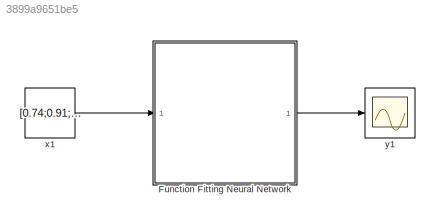
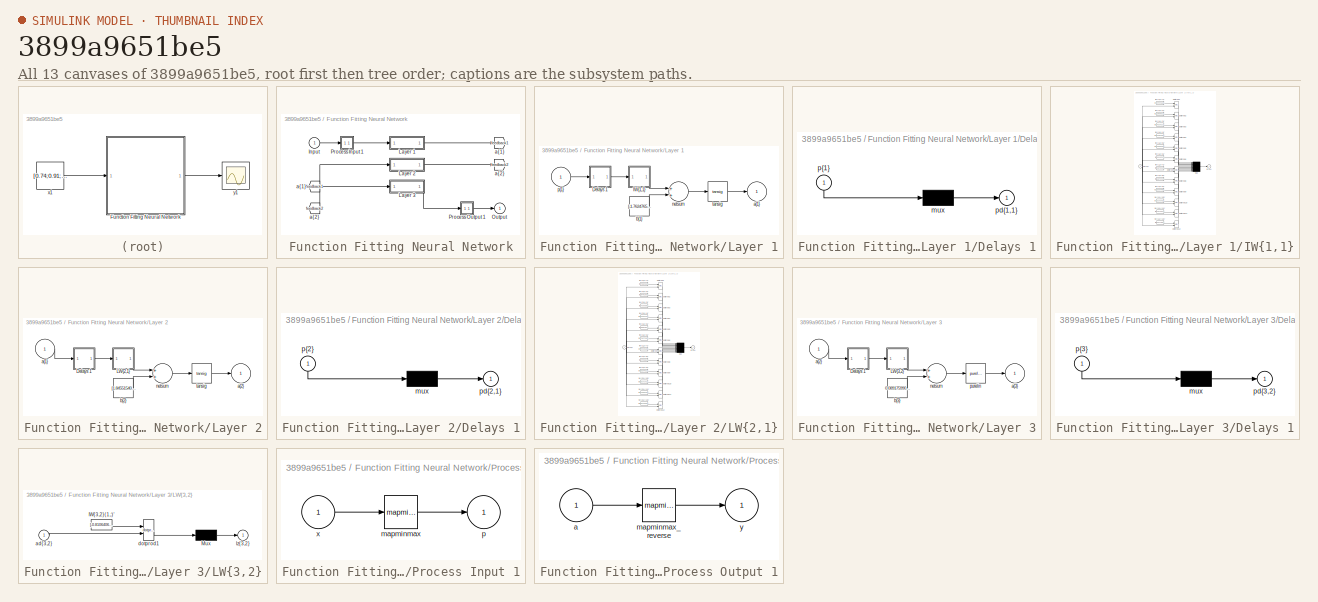
[diagram: thumbnail index - all 13 canvases of the model, root first then tree order]
MODEL slx_3899a9651be5
KIND model
CONFIG AbsTol = auto
CONFIG EnableMultiTasking = off
CONFIG FixedStep = auto
CONFIG MaxStep = auto
CONFIG MinStep = auto
CONFIG RelTol = 1e-3
CONFIG SampleTimeConstraint = Unconstrained
CONFIG Solver = VariableStepAuto
CONFIG SolverName = VariableStepAuto
CONFIG StartTime = 0.0
CONFIG StopTime = 10.0
BLOCK [SubSystem] Function Fitting Neural Network
  Ports = [1, 1]
  RequestExecContextInheritance = off
  Variant = off
BLOCK [From] Function Fitting Neural Network/ a{1} 
  GotoTag = feedback1
BLOCK [From] Function Fitting Neural Network/ a{2} 
  GotoTag = feedback2
BLOCK [Inport] Function Fitting Neural Network/Input
  IconDisplay = Port number
  PortDimensions = 12
BLOCK [SubSystem] Function Fitting Neural Network/Layer 1
  Ports = [1, 1]
  RequestExecContextInheritance = off
  Variant = off
BLOCK [SubSystem] Function Fitting Neural Network/Layer 1/Delays 1
  Ports = [1, 1]
  RequestExecContextInheritance = off
  Variant = off
BLOCK [Mux] Function Fitting Neural Network/Layer 1/Delays 1/mux
  Inputs = 1
  Ports = [1, 1]
BLOCK [Outport] Function Fitting Neural Network/Layer 1/Delays 1/pd{1,1}
  IconDisplay = Port number
BLOCK [Inport] Function Fitting Neural Network/Layer 1/Delays 1/p{1}
  IconDisplay = Port number
  PortDimensions = 12
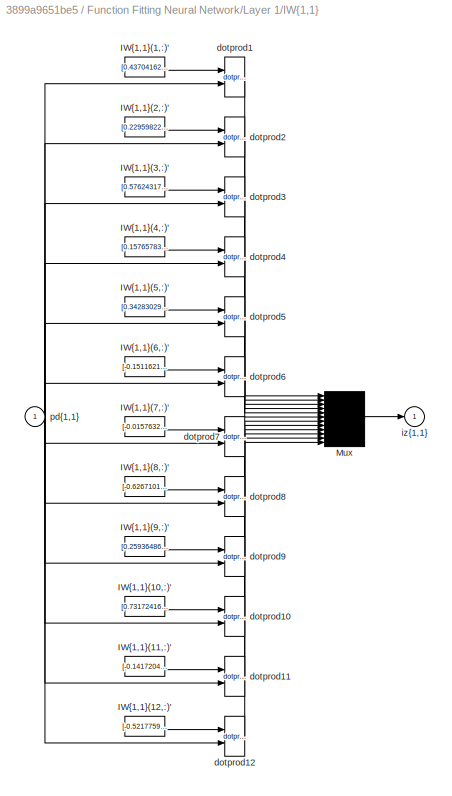
BLOCK [SubSystem] Function Fitting Neural Network/Layer 1/IW{1,1}
  Ports = [1, 1]
  RequestExecContextInheritance = off
  Variant = off
BLOCK [Constant] Function Fitting Neural Network/Layer 1/IW{1,1}/IW{1,1}(1,:)'
  Value = [0.43704162364917265;0.64268125468312598;-0.74407939485202568;-0.3734645715665717;-0.12626066338220779;-0.46102057530924151;0.33214810769991265;-0.66232507531383999;0.66531976328136044;-0.12225439327874496;0.64215575058601371;0.073497253031550164]
BLOCK [Constant] Function Fitting Neural Network/Layer 1/IW{1,1}/IW{1,1}(10,:)'
  Value = [0.73172416477229518;-0.55908697838488608;0.36031908531616563;0.1079634561764575;-0.37544739516279813;-0.35406300722800915;-1.3115252726166038;0.028269575601080982;0.35320530625842311;-0.78640110368279847;-0.92589312522952338;0.46373655461860663]
BLOCK [Constant] Function Fitting Neural Network/Layer 1/IW{1,1}/IW{1,1}(11,:)'
  Value = [-0.14172042795184125;0.48419613030205261;0.67339126379857572;-0.5267026226090179;0.92456885755021978;0.14686022613108224;-0.75265261554988139;0.59666652129532927;-0.75425762066235413;-0.62027275559831441;0.36373750965956259;0.17373381678363042]
BLOCK [Constant] Function Fitting Neural Network/Layer 1/IW{1,1}/IW{1,1}(12,:)'
  Value = [-0.5217759488072734;-0.48405983814134729;-0.18520727310090618;-0.63290721790703641;0.68564554213040452;-0.45184333731868864;-0.77640408155051999;0.30284858611110799;0.52446841188808857;-0.2084961613668796;0.40115886078777718;0.22575297606147535]
BLOCK [Constant] Function Fitting Neural Network/Layer 1/IW{1,1}/IW{1,1}(2,:)'
  Value = [0.22959822909370561;-0.33342449436632526;0.45852451590497523;0.31566822699939268;-0.58014134623582658;0.22806929935791051;0.56878341000542942;-0.5404831224275235;-0.61808387327567704;-0.95324549446138307;-0.33847631052852961;0.48615203461508438]
BLOCK [Constant] Function Fitting Neural Network/Layer 1/IW{1,1}/IW{1,1}(3,:)'
  Value = [0.57624317080561072;0.36595937279211366;0.039649707724281634;-0.86736527094081428;-0.79362060868904283;0.47852106915302667;-0.80720555224527946;-0.0040908853910025782;-0.10760235398373853;-0.22599931958945088;-0.75519893585475983;0.31637685757109729]
BLOCK [Constant] Function Fitting Neural Network/Layer 1/IW{1,1}/IW{1,1}(4,:)'
  Value = [0.1576578330251901;0.77087476149448841;0.30355869783513928;0.39128023747688556;0.96386455561552387;0.61639625722258595;0.55255576127873218;0.079347682525971755;-0.72520302612003251;0.25233053209656936;-0.071870563209848012;-0.86871619634233732]
BLOCK [Constant] Function Fitting Neural Network/Layer 1/IW{1,1}/IW{1,1}(5,:)'
  Value = [0.34283029176939905;0.12352373707109091;0.087430127960762799;0.94246062121024399;0.28911064862805019;-0.64643358956845753;-0.57024393427533404;0.19028237926670255;0.01687082321468324;-0.74552047769749652;-1.1628701820997904;-0.54941192734007682]
BLOCK [Constant] Function Fitting Neural Network/Layer 1/IW{1,1}/IW{1,1}(6,:)'
  Value = [-0.15116213957899496;-0.032371377982644015;-0.45341244605058073;-0.80233604702929129;0.67644649882711272;-0.32955983568962738;-0.45415994446073715;2.2660708503599616;1.1022757144642079;-0.18711245112138383;1.7931908262360281;-0.11728337564279079]
BLOCK [Constant] Function Fitting Neural Network/Layer 1/IW{1,1}/IW{1,1}(7,:)'
  Value = [-0.015763293509663361;0.21418879108348557;0.084789347665062215;-0.9473501808947381;-0.52956413775388;0.62644870653298712;-0.74546177072795106;0.7528532590202619;0.38215642418860213;-0.014217787850693322;-0.52804640380680146;-0.17017563461053492]
BLOCK [Constant] Function Fitting Neural Network/Layer 1/IW{1,1}/IW{1,1}(8,:)'
  Value = [-0.62671017079077518;-0.45246493911875357;-0.5497993464891211;-0.52117615126827155;0.11962404645454343;0.044242025337097604;0.30973714125566393;0.64627574164023438;-0.60722558952788463;0.28662459457240202;-0.13444999960085108;-0.81674384744708606]
BLOCK [Constant] Function Fitting Neural Network/Layer 1/IW{1,1}/IW{1,1}(9,:)'
  Value = [0.25936486561922034;0.20665186859930315;0.12820438753315816;-0.55779816093197465;0.18984735796494484;-0.91491670208443543;1.3719632130581405;0.17232005685943325;-0.75605686115374549;0.30157278173616214;1.2478783084987748;0.26367734963050249]
BLOCK [Mux] Function Fitting Neural Network/Layer 1/IW{1,1}/Mux
  Inputs = 12
  Ports = [12, 1]
BLOCK [Reference] Function Fitting Neural Network/Layer 1/IW{1,1}/dotprod1  REF=neural/Weight Functions/dotprod
  Ports = [2, 1]
  SourceBlock = neural/Weight Functions/dotprod
  SourceType = DOTPROD
BLOCK [Reference] Function Fitting Neural Network/Layer 1/IW{1,1}/dotprod10  REF=neural/Weight Functions/dotprod
  Ports = [2, 1]
  SourceBlock = neural/Weight Functions/dotprod
  SourceType = DOTPROD
BLOCK [Reference] Function Fitting Neural Network/Layer 1/IW{1,1}/dotprod11  REF=neural/Weight Functions/dotprod
  Ports = [2, 1]
  SourceBlock = neural/Weight Functions/dotprod
  SourceType = DOTPROD
BLOCK [Reference] Function Fitting Neural Network/Layer 1/IW{1,1}/dotprod12  REF=neural/Weight Functions/dotprod
  Ports = [2, 1]
  SourceBlock = neural/Weight Functions/dotprod
  SourceType = DOTPROD
BLOCK [Reference] Function Fitting Neural Network/Layer 1/IW{1,1}/dotprod2  REF=neural/Weight Functions/dotprod
  Ports = [2, 1]
  SourceBlock = neural/Weight Functions/dotprod
  SourceType = DOTPROD
BLOCK [Reference] Function Fitting Neural Network/Layer 1/IW{1,1}/dotprod3  REF=neural/Weight Functions/dotprod
  Ports = [2, 1]
  SourceBlock = neural/Weight Functions/dotprod
  SourceType = DOTPROD
BLOCK [Reference] Function Fitting Neural Network/Layer 1/IW{1,1}/dotprod4  REF=neural/Weight Functions/dotprod
  Ports = [2, 1]
  SourceBlock = neural/Weight Functions/dotprod
  SourceType = DOTPROD
BLOCK [Reference] Function Fitting Neural Network/Layer 1/IW{1,1}/dotprod5  REF=neural/Weight Functions/dotprod
  Ports = [2, 1]
  SourceBlock = neural/Weight Functions/dotprod
  SourceType = DOTPROD
BLOCK [Reference] Function Fitting Neural Network/Layer 1/IW{1,1}/dotprod6  REF=neural/Weight Functions/dotprod
  Ports = [2, 1]
  SourceBlock = neural/Weight Functions/dotprod
  SourceType = DOTPROD
BLOCK [Reference] Function Fitting Neural Network/Layer 1/IW{1,1}/dotprod7  REF=neural/Weight Functions/dotprod
  Ports = [2, 1]
  SourceBlock = neural/Weight Functions/dotprod
  SourceType = DOTPROD
BLOCK [Reference] Function Fitting Neural Network/Layer 1/IW{1,1}/dotprod8  REF=neural/Weight Functions/dotprod
  Ports = [2, 1]
  SourceBlock = neural/Weight Functions/dotprod
  SourceType = DOTPROD
BLOCK [Reference] Function Fitting Neural Network/Layer 1/IW{1,1}/dotprod9  REF=neural/Weight Functions/dotprod
  Ports = [2, 1]
  SourceBlock = neural/Weight Functions/dotprod
  SourceType = DOTPROD
BLOCK [Outport] Function Fitting Neural Network/Layer 1/IW{1,1}/iz{1,1}
  IconDisplay = Port number
BLOCK [Inport] Function Fitting Neural Network/Layer 1/IW{1,1}/pd{1,1}
  IconDisplay = Port number
  PortDimensions = 12
BLOCK [Outport] Function Fitting Neural Network/Layer 1/a{1}
  IconDisplay = Port number
  InitialOutput = [0;0;0;0;0;0;0;0;0;0;0;0]
BLOCK [Constant] Function Fitting Neural Network/Layer 1/b{1}
  Value = [-1.7624765523461459;-1.4017486724466128;-1.4268627485283323;1.0814369417314096;0.53679886543957545;-0.34753195461461317;-0.31759357765782331;-0.15139993602678378;-0.66998139740716411;0.92016977214989837;-1.2369349738001543;-1.8114444280105317]
BLOCK [Sum] Function Fitting Neural Network/Layer 1/netsum
  Inputs = 2
  Ports = [2, 1]
BLOCK [Inport] Function Fitting Neural Network/Layer 1/p{1}
  IconDisplay = Port number
  PortDimensions = 12
BLOCK [Reference] Function Fitting Neural Network/Layer 1/tansig  REF=neural/Transfer Functions/tansig
  Ports = [1, 1]
  SourceBlock = neural/Transfer Functions/tansig
  SourceType = TANSIG
BLOCK [SubSystem] Function Fitting Neural Network/Layer 2
  Ports = [1, 1]
  RequestExecContextInheritance = off
  Variant = off
BLOCK [SubSystem] Function Fitting Neural Network/Layer 2/Delays 1
  Ports = [1, 1]
  RequestExecContextInheritance = off
  Variant = off
BLOCK [Mux] Function Fitting Neural Network/Layer 2/Delays 1/mux
  Inputs = 1
  Ports = [1, 1]
BLOCK [Outport] Function Fitting Neural Network/Layer 2/Delays 1/pd{2,1}
  IconDisplay = Port number
BLOCK [Inport] Function Fitting Neural Network/Layer 2/Delays 1/p{2}
  IconDisplay = Port number
  PortDimensions = 12
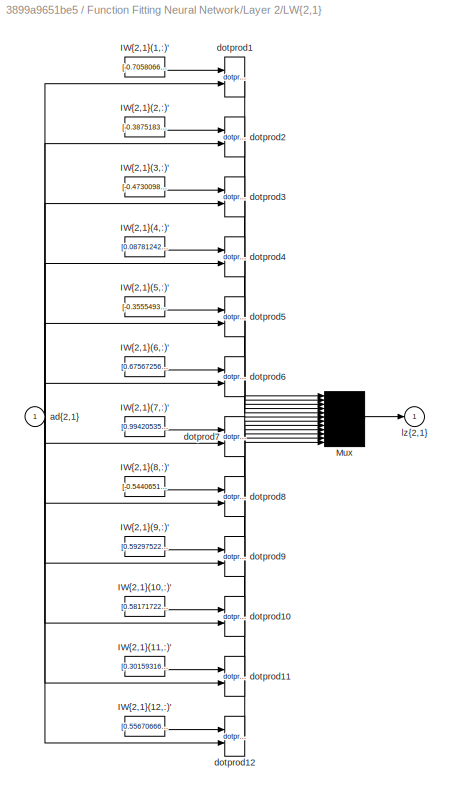
BLOCK [SubSystem] Function Fitting Neural Network/Layer 2/LW{2,1}
  Ports = [1, 1]
  RequestExecContextInheritance = off
  Variant = off
BLOCK [Constant] Function Fitting Neural Network/Layer 2/LW{2,1}/IW{2,1}(1,:)'
  Value = [-0.70580664939987614;-0.59922348813434956;-0.73046098918962976;-0.79798612223987286;0.72819550873942451;-0.20558560812675927;-0.34530167607529949;-0.39341193455103446;-0.39554952118936765;-0.2886402054489417;0.09929143305595696;0.0061291713483986087]
BLOCK [Constant] Function Fitting Neural Network/Layer 2/LW{2,1}/IW{2,1}(10,:)'
  Value = [0.58171722760559375;0.79306889532764235;0.54123869182575812;-0.40172787012084188;0.61470431983259999;-0.07605612315944503;0.24412775954313906;0.20205203974727218;-0.62573256089481011;-0.68292683595051429;0.01739115960622506;0.12085968373147046]
BLOCK [Constant] Function Fitting Neural Network/Layer 2/LW{2,1}/IW{2,1}(11,:)'
  Value = [0.30159316262660385;0.94578290084413819;-0.67358527566590609;0.34914593420697998;0.34720483546225855;0.23391976875251116;-0.75903575740902374;-0.8506659121896879;1.0569115461559653;-0.24506153917743503;-0.070593751900800847;0.3724039575517003]
BLOCK [Constant] Function Fitting Neural Network/Layer 2/LW{2,1}/IW{2,1}(12,:)'
  Value = [0.55670666395211488;-0.13808336163564464;0.1148993341206648;-0.43413512080571592;0.47709799423075544;-1.5337289181724385;-0.24337678727588968;-0.04644269521146735;0.62938059723870021;0.16175791474798168;-0.53455090868718502;0.013496562980993658]
BLOCK [Constant] Function Fitting Neural Network/Layer 2/LW{2,1}/IW{2,1}(2,:)'
  Value = [-0.38751836803006035;0.37599209565875197;-0.38818007731746601;-0.64668986108379789;-0.70660961212988738;0.21430279062356958;0.75208021451588869;0.15346631372131789;-0.7372953845079242;-0.26859258555105719;-0.47262612740750504;0.49142255035269389]
BLOCK [Constant] Function Fitting Neural Network/Layer 2/LW{2,1}/IW{2,1}(3,:)'
  Value = [-0.47300985613508495;-0.41676400068333891;-0.53028894803765392;-0.16558201351277438;-0.87005867460034003;-0.61067040813953766;0.2749628955862457;0.52625208164059567;-0.66945805088073063;0.51092503907860853;-0.54302331542243854;-0.30987460385770521]
BLOCK [Constant] Function Fitting Neural Network/Layer 2/LW{2,1}/IW{2,1}(4,:)'
  Value = [0.087812420545653497;0.21054179316835245;0.41596262819800517;0.041473927522200693;0.36256419350803915;1.0708950786391818;-0.60045315668519417;0.78144584346132939;-0.83868179240117779;0.89927033267507728;-0.054247702675083831;-0.048725543315571739]
BLOCK [Constant] Function Fitting Neural Network/Layer 2/LW{2,1}/IW{2,1}(5,:)'
  Value = [-0.35554934136670147;0.15370521951693195;0.47693773303308257;-0.59570842270850821;0.48936294353947146;0.50491111205326178;-0.59168908495011241;-0.15019154130798662;0.61795848456100744;-0.46928652111028946;0.54313333901242966;0.61728093532653416]
BLOCK [Constant] Function Fitting Neural Network/Layer 2/LW{2,1}/IW{2,1}(6,:)'
  Value = [0.67567256767512285;-0.34742025274260302;0.34765532213782441;-0.64935151754045717;0.61184092404050572;-0.01255851922592021;0.5854603398106456;-0.70393259781871709;-0.51879764106758852;-0.10687455595706893;-0.61283847905014799;-0.06933277910297217]
BLOCK [Constant] Function Fitting Neural Network/Layer 2/LW{2,1}/IW{2,1}(7,:)'
  Value = [0.99420535092525564;-0.2987842761272505;-0.37605840455832834;-0.78808551545026639;-0.71710856580445259;0.45127088598771353;-0.033869659734781198;-0.22289145204084895;0.70735154004136558;-1.0588768224513545;-1.0588711376939308;-0.24662192879078432]
BLOCK [Constant] Function Fitting Neural Network/Layer 2/LW{2,1}/IW{2,1}(8,:)'
  Value = [-0.54406517101715357;0.47620796832699464;0.55521023107529555;0.72295768246122316;0.0041442196122145085;-0.86605346213631507;-0.66988803210212766;0.20192271262279368;0.19657038951732453;-0.78732677444727661;-0.050951180024884538;0.28197959951655399]
BLOCK [Constant] Function Fitting Neural Network/Layer 2/LW{2,1}/IW{2,1}(9,:)'
  Value = [0.59297522414953308;0.51849411799365508;0.54425802128418477;-0.89250362222650859;0.066616947749631894;-0.065434336680788074;0.68535980273217079;-0.51874714869722893;0.36229480222098248;-0.73929277811212735;-0.14877974449021422;0.54489606610511598]
BLOCK [Mux] Function Fitting Neural Network/Layer 2/LW{2,1}/Mux
  Inputs = 12
  Ports = [12, 1]
BLOCK [Inport] Function Fitting Neural Network/Layer 2/LW{2,1}/ad{2,1}
  IconDisplay = Port number
  PortDimensions = 12
BLOCK [Reference] Function Fitting Neural Network/Layer 2/LW{2,1}/dotprod1  REF=neural/Weight Functions/dotprod
  Ports = [2, 1]
  SourceBlock = neural/Weight Functions/dotprod
  SourceType = DOTPROD
BLOCK [Reference] Function Fitting Neural Network/Layer 2/LW{2,1}/dotprod10  REF=neural/Weight Functions/dotprod
  Ports = [2, 1]
  SourceBlock = neural/Weight Functions/dotprod
  SourceType = DOTPROD
BLOCK [Reference] Function Fitting Neural Network/Layer 2/LW{2,1}/dotprod11  REF=neural/Weight Functions/dotprod
  Ports = [2, 1]
  SourceBlock = neural/Weight Functions/dotprod
  SourceType = DOTPROD
BLOCK [Reference] Function Fitting Neural Network/Layer 2/LW{2,1}/dotprod12  REF=neural/Weight Functions/dotprod
  Ports = [2, 1]
  SourceBlock = neural/Weight Functions/dotprod
  SourceType = DOTPROD
BLOCK [Reference] Function Fitting Neural Network/Layer 2/LW{2,1}/dotprod2  REF=neural/Weight Functions/dotprod
  Ports = [2, 1]
  SourceBlock = neural/Weight Functions/dotprod
  SourceType = DOTPROD
BLOCK [Reference] Function Fitting Neural Network/Layer 2/LW{2,1}/dotprod3  REF=neural/Weight Functions/dotprod
  Ports = [2, 1]
  SourceBlock = neural/Weight Functions/dotprod
  SourceType = DOTPROD
BLOCK [Reference] Function Fitting Neural Network/Layer 2/LW{2,1}/dotprod4  REF=neural/Weight Functions/dotprod
  Ports = [2, 1]
  SourceBlock = neural/Weight Functions/dotprod
  SourceType = DOTPROD
BLOCK [Reference] Function Fitting Neural Network/Layer 2/LW{2,1}/dotprod5  REF=neural/Weight Functions/dotprod
  Ports = [2, 1]
  SourceBlock = neural/Weight Functions/dotprod
  SourceType = DOTPROD
BLOCK [Reference] Function Fitting Neural Network/Layer 2/LW{2,1}/dotprod6  REF=neural/Weight Functions/dotprod
  Ports = [2, 1]
  SourceBlock = neural/Weight Functions/dotprod
  SourceType = DOTPROD
BLOCK [Reference] Function Fitting Neural Network/Layer 2/LW{2,1}/dotprod7  REF=neural/Weight Functions/dotprod
  Ports = [2, 1]
  SourceBlock = neural/Weight Functions/dotprod
  SourceType = DOTPROD
BLOCK [Reference] Function Fitting Neural Network/Layer 2/LW{2,1}/dotprod8  REF=neural/Weight Functions/dotprod
  Ports = [2, 1]
  SourceBlock = neural/Weight Functions/dotprod
  SourceType = DOTPROD
BLOCK [Reference] Function Fitting Neural Network/Layer 2/LW{2,1}/dotprod9  REF=neural/Weight Functions/dotprod
  Ports = [2, 1]
  SourceBlock = neural/Weight Functions/dotprod
  SourceType = DOTPROD
BLOCK [Outport] Function Fitting Neural Network/Layer 2/LW{2,1}/lz{2,1}
  IconDisplay = Port number
BLOCK [Inport] Function Fitting Neural Network/Layer 2/a{1} 
  IconDisplay = Port number
  PortDimensions = 12
BLOCK [Outport] Function Fitting Neural Network/Layer 2/a{2}
  IconDisplay = Port number
  InitialOutput = [0;0;0;0;0;0;0;0;0;0;0;0]
BLOCK [Constant] Function Fitting Neural Network/Layer 2/b{2}
  Value = [1.8455154064150041;1.4710305045036867;0.93709520672709623;-0.73913241005552244;0.51169156646500991;-0.17272809345153597;-0.065775516746546858;-0.4142578993301384;0.59660483925796781;1.0978626739172705;1.4059195802052178;1.8190633821377615]
BLOCK [Sum] Function Fitting Neural Network/Layer 2/netsum
  Inputs = 2
  Ports = [2, 1]
BLOCK [Reference] Function Fitting Neural Network/Layer 2/tansig  REF=neural/Transfer Functions/tansig
  Ports = [1, 1]
  SourceBlock = neural/Transfer Functions/tansig
  SourceType = TANSIG
BLOCK [SubSystem] Function Fitting Neural Network/Layer 3
  Ports = [1, 1]
  RequestExecContextInheritance = off
  Variant = off
BLOCK [SubSystem] Function Fitting Neural Network/Layer 3/Delays 1
  Ports = [1, 1]
  RequestExecContextInheritance = off
  Variant = off
BLOCK [Mux] Function Fitting Neural Network/Layer 3/Delays 1/mux
  Inputs = 1
  Ports = [1, 1]
BLOCK [Outport] Function Fitting Neural Network/Layer 3/Delays 1/pd{3,2}
  IconDisplay = Port number
BLOCK [Inport] Function Fitting Neural Network/Layer 3/Delays 1/p{3}
  IconDisplay = Port number
  PortDimensions = 12
BLOCK [SubSystem] Function Fitting Neural Network/Layer 3/LW{3,2}
  Ports = [1, 1]
  RequestExecContextInheritance = off
  Variant = off
BLOCK [Constant] Function Fitting Neural Network/Layer 3/LW{3,2}/IW{3,2}(1,:)'
  Value = [-0.81064064556826421;-0.67774826278314637;1.1975880653313418;0.58014563757665039;-0.080108257987620751;-0.40167529020554832;0.67309675335534624;0.16437190224500081;0.4081449494265515;-0.063754727388315668;0.84071436976144587;-0.73673977825543369]
BLOCK [Mux] Function Fitting Neural Network/Layer 3/LW{3,2}/Mux
  Inputs = 1
  Ports = [1, 1]
BLOCK [Inport] Function Fitting Neural Network/Layer 3/LW{3,2}/ad{3,2}
  IconDisplay = Port number
  PortDimensions = 12
BLOCK [Reference] Function Fitting Neural Network/Layer 3/LW{3,2}/dotprod1  REF=neural/Weight Functions/dotprod
  Ports = [2, 1]
  SourceBlock = neural/Weight Functions/dotprod
  SourceType = DOTPROD
BLOCK [Outport] Function Fitting Neural Network/Layer 3/LW{3,2}/lz{3,2}
  IconDisplay = Port number
BLOCK [Inport] Function Fitting Neural Network/Layer 3/a{2} 
  IconDisplay = Port number
  PortDimensions = 12
BLOCK [Outport] Function Fitting Neural Network/Layer 3/a{3}
  IconDisplay = Port number
  InitialOutput = 0
BLOCK [Constant] Function Fitting Neural Network/Layer 3/b{3}
  Value = 0.089175990689318863
BLOCK [Sum] Function Fitting Neural Network/Layer 3/netsum
  Inputs = 2
  Ports = [2, 1]
BLOCK [Reference] Function Fitting Neural Network/Layer 3/purelin  REF=neural/Transfer Functions/purelin
  Ports = [1, 1]
  SourceBlock = neural/Transfer Functions/purelin
  SourceType = PURELIN
BLOCK [Outport] Function Fitting Neural Network/Output
  IconDisplay = Port number
  InitialOutput = 0
BLOCK [SubSystem] Function Fitting Neural Network/Process Input 1
  Ports = [1, 1]
  RequestExecContextInheritance = off
  Variant = off
BLOCK [Reference] Function Fitting Neural Network/Process Input 1/mapminmax  REF=neural/Processing Functions/mapminmax
  Ports = [1, 1]
  SourceBlock = neural/Processing Functions/mapminmax
  SourceType = MAPMINMAX Preprocess
BLOCK [Outport] Function Fitting Neural Network/Process Input 1/p
  IconDisplay = Port number
  PortDimensions = 12
BLOCK [Inport] Function Fitting Neural Network/Process Input 1/x
  IconDisplay = Port number
  PortDimensions = 12
BLOCK [SubSystem] Function Fitting Neural Network/Process Output 1
  Ports = [1, 1]
  RequestExecContextInheritance = off
  Variant = off
BLOCK [Inport] Function Fitting Neural Network/Process Output 1/a
  IconDisplay = Port number
  PortDimensions = 1
BLOCK [Reference] Function Fitting Neural Network/Process Output 1/mapminmax_reverse  REF=neural/Processing Functions/mapminmax_reverse
  Ports = [1, 1]
  SourceBlock = neural/Processing Functions/mapminmax_reverse
  SourceType = MAPMINMAX Reverse Process
BLOCK [Outport] Function Fitting Neural Network/Process Output 1/y
  IconDisplay = Port number
  PortDimensions = 1
BLOCK [Goto] Function Fitting Neural Network/a{1}
  GotoTag = feedback1
BLOCK [Goto] Function Fitting Neural Network/a{2}
  GotoTag = feedback2
BLOCK [Constant] x1
  SampleTime = 1
  Value = [0.74;0.91;0.15;0.026;0.78;0.83;0.12;0.29;0.85;0.46;0.18;0.58]
BLOCK [Scope] y1
  NumInputPorts = 1
  Ports = [1]
LINE Function Fitting Neural Network/ a{1} :1 -> Function Fitting Neural Network/Layer 2:1
LINE Function Fitting Neural Network/ a{2} :1 -> Function Fitting Neural Network/Layer 3:1
LINE Function Fitting Neural Network/Input:1 -> Function Fitting Neural Network/Process Input 1:1
LINE Function Fitting Neural Network/Layer 1/Delays 1/mux:1 -> Function Fitting Neural Network/Layer 1/Delays 1/pd{1,1}:1
LINE Function Fitting Neural Network/Layer 1/Delays 1/p{1}:1 -> Function Fitting Neural Network/Layer 1/Delays 1/mux:1
LINE Function Fitting Neural Network/Layer 1/Delays 1:1 -> Function Fitting Neural Network/Layer 1/IW{1,1}:1
LINE Function Fitting Neural Network/Layer 1/IW{1,1}/IW{1,1}(1,:)':1 -> Function Fitting Neural Network/Layer 1/IW{1,1}/dotprod1:1
LINE Function Fitting Neural Network/Layer 1/IW{1,1}/IW{1,1}(10,:)':1 -> Function Fitting Neural Network/Layer 1/IW{1,1}/dotprod10:1
LINE Function Fitting Neural Network/Layer 1/IW{1,1}/IW{1,1}(11,:)':1 -> Function Fitting Neural Network/Layer 1/IW{1,1}/dotprod11:1
LINE Function Fitting Neural Network/Layer 1/IW{1,1}/IW{1,1}(12,:)':1 -> Function Fitting Neural Network/Layer 1/IW{1,1}/dotprod12:1
LINE Function Fitting Neural Network/Layer 1/IW{1,1}/IW{1,1}(2,:)':1 -> Function Fitting Neural Network/Layer 1/IW{1,1}/dotprod2:1
LINE Function Fitting Neural Network/Layer 1/IW{1,1}/IW{1,1}(3,:)':1 -> Function Fitting Neural Network/Layer 1/IW{1,1}/dotprod3:1
LINE Function Fitting Neural Network/Layer 1/IW{1,1}/IW{1,1}(4,:)':1 -> Function Fitting Neural Network/Layer 1/IW{1,1}/dotprod4:1
LINE Function Fitting Neural Network/Layer 1/IW{1,1}/IW{1,1}(5,:)':1 -> Function Fitting Neural Network/Layer 1/IW{1,1}/dotprod5:1
LINE Function Fitting Neural Network/Layer 1/IW{1,1}/IW{1,1}(6,:)':1 -> Function Fitting Neural Network/Layer 1/IW{1,1}/dotprod6:1
LINE Function Fitting Neural Network/Layer 1/IW{1,1}/IW{1,1}(7,:)':1 -> Function Fitting Neural Network/Layer 1/IW{1,1}/dotprod7:1
LINE Function Fitting Neural Network/Layer 1/IW{1,1}/IW{1,1}(8,:)':1 -> Function Fitting Neural Network/Layer 1/IW{1,1}/dotprod8:1
LINE Function Fitting Neural Network/Layer 1/IW{1,1}/IW{1,1}(9,:)':1 -> Function Fitting Neural Network/Layer 1/IW{1,1}/dotprod9:1
LINE Function Fitting Neural Network/Layer 1/IW{1,1}/Mux:1 -> Function Fitting Neural Network/Layer 1/IW{1,1}/iz{1,1}:1
LINE Function Fitting Neural Network/Layer 1/IW{1,1}/dotprod10:1 -> Function Fitting Neural Network/Layer 1/IW{1,1}/Mux:10
LINE Function Fitting Neural Network/Layer 1/IW{1,1}/dotprod11:1 -> Function Fitting Neural Network/Layer 1/IW{1,1}/Mux:11
LINE Function Fitting Neural Network/Layer 1/IW{1,1}/dotprod12:1 -> Function Fitting Neural Network/Layer 1/IW{1,1}/Mux:12
LINE Function Fitting Neural Network/Layer 1/IW{1,1}/dotprod1:1 -> Function Fitting Neural Network/Layer 1/IW{1,1}/Mux:1
LINE Function Fitting Neural Network/Layer 1/IW{1,1}/dotprod2:1 -> Function Fitting Neural Network/Layer 1/IW{1,1}/Mux:2
LINE Function Fitting Neural Network/Layer 1/IW{1,1}/dotprod3:1 -> Function Fitting Neural Network/Layer 1/IW{1,1}/Mux:3
LINE Function Fitting Neural Network/Layer 1/IW{1,1}/dotprod4:1 -> Function Fitting Neural Network/Layer 1/IW{1,1}/Mux:4
LINE Function Fitting Neural Network/Layer 1/IW{1,1}/dotprod5:1 -> Function Fitting Neural Network/Layer 1/IW{1,1}/Mux:5
LINE Function Fitting Neural Network/Layer 1/IW{1,1}/dotprod6:1 -> Function Fitting Neural Network/Layer 1/IW{1,1}/Mux:6
LINE Function Fitting Neural Network/Layer 1/IW{1,1}/dotprod7:1 -> Function Fitting Neural Network/Layer 1/IW{1,1}/Mux:7
LINE Function Fitting Neural Network/Layer 1/IW{1,1}/dotprod8:1 -> Function Fitting Neural Network/Layer 1/IW{1,1}/Mux:8
LINE Function Fitting Neural Network/Layer 1/IW{1,1}/dotprod9:1 -> Function Fitting Neural Network/Layer 1/IW{1,1}/Mux:9
NET Function Fitting Neural Network/Layer 1/IW{1,1}/pd{1,1}:1 -> Function Fitting Neural Network/Layer 1/IW{1,1}/dotprod10:2, Function Fitting Neural Network/Layer 1/IW{1,1}/dotprod11:2, Function Fitting Neural Network/Layer 1/IW{1,1}/dotprod12:2, Function Fitting Neural Network/Layer 1/IW{1,1}/dotprod1:2, Function Fitting Neural Network/Layer 1/IW{1,1}/dotprod2:2, Function Fitting Neural Network/Layer 1/IW{1,1}/dotprod3:2, Function Fitting Neural Network/Layer 1/IW{1,1}/dotprod4:2, Function Fitting Neural Network/Layer 1/IW{1,1}/dotprod5:2, Function Fitting Neural Network/Layer 1/IW{1,1}/dotprod6:2, Function Fitting Neural Network/Layer 1/IW{1,1}/dotprod7:2, Function Fitting Neural Network/Layer 1/IW{1,1}/dotprod8:2, Function Fitting Neural Network/Layer 1/IW{1,1}/dotprod9:2
LINE Function Fitting Neural Network/Layer 1/IW{1,1}:1 -> Function Fitting Neural Network/Layer 1/netsum:1
LINE Function Fitting Neural Network/Layer 1/b{1}:1 -> Function Fitting Neural Network/Layer 1/netsum:2
LINE Function Fitting Neural Network/Layer 1/netsum:1 -> Function Fitting Neural Network/Layer 1/tansig:1
LINE Function Fitting Neural Network/Layer 1/p{1}:1 -> Function Fitting Neural Network/Layer 1/Delays 1:1
LINE Function Fitting Neural Network/Layer 1/tansig:1 -> Function Fitting Neural Network/Layer 1/a{1}:1
LINE Function Fitting Neural Network/Layer 1:1 -> Function Fitting Neural Network/a{1}:1
LINE Function Fitting Neural Network/Layer 2/Delays 1/mux:1 -> Function Fitting Neural Network/Layer 2/Delays 1/pd{2,1}:1
LINE Function Fitting Neural Network/Layer 2/Delays 1/p{2}:1 -> Function Fitting Neural Network/Layer 2/Delays 1/mux:1
LINE Function Fitting Neural Network/Layer 2/Delays 1:1 -> Function Fitting Neural Network/Layer 2/LW{2,1}:1
LINE Function Fitting Neural Network/Layer 2/LW{2,1}/IW{2,1}(1,:)':1 -> Function Fitting Neural Network/Layer 2/LW{2,1}/dotprod1:1
LINE Function Fitting Neural Network/Layer 2/LW{2,1}/IW{2,1}(10,:)':1 -> Function Fitting Neural Network/Layer 2/LW{2,1}/dotprod10:1
LINE Function Fitting Neural Network/Layer 2/LW{2,1}/IW{2,1}(11,:)':1 -> Function Fitting Neural Network/Layer 2/LW{2,1}/dotprod11:1
LINE Function Fitting Neural Network/Layer 2/LW{2,1}/IW{2,1}(12,:)':1 -> Function Fitting Neural Network/Layer 2/LW{2,1}/dotprod12:1
LINE Function Fitting Neural Network/Layer 2/LW{2,1}/IW{2,1}(2,:)':1 -> Function Fitting Neural Network/Layer 2/LW{2,1}/dotprod2:1
LINE Function Fitting Neural Network/Layer 2/LW{2,1}/IW{2,1}(3,:)':1 -> Function Fitting Neural Network/Layer 2/LW{2,1}/dotprod3:1
LINE Function Fitting Neural Network/Layer 2/LW{2,1}/IW{2,1}(4,:)':1 -> Function Fitting Neural Network/Layer 2/LW{2,1}/dotprod4:1
LINE Function Fitting Neural Network/Layer 2/LW{2,1}/IW{2,1}(5,:)':1 -> Function Fitting Neural Network/Layer 2/LW{2,1}/dotprod5:1
LINE Function Fitting Neural Network/Layer 2/LW{2,1}/IW{2,1}(6,:)':1 -> Function Fitting Neural Network/Layer 2/LW{2,1}/dotprod6:1
LINE Function Fitting Neural Network/Layer 2/LW{2,1}/IW{2,1}(7,:)':1 -> Function Fitting Neural Network/Layer 2/LW{2,1}/dotprod7:1
LINE Function Fitting Neural Network/Layer 2/LW{2,1}/IW{2,1}(8,:)':1 -> Function Fitting Neural Network/Layer 2/LW{2,1}/dotprod8:1
LINE Function Fitting Neural Network/Layer 2/LW{2,1}/IW{2,1}(9,:)':1 -> Function Fitting Neural Network/Layer 2/LW{2,1}/dotprod9:1
LINE Function Fitting Neural Network/Layer 2/LW{2,1}/Mux:1 -> Function Fitting Neural Network/Layer 2/LW{2,1}/lz{2,1}:1
NET Function Fitting Neural Network/Layer 2/LW{2,1}/ad{2,1}:1 -> Function Fitting Neural Network/Layer 2/LW{2,1}/dotprod10:2, Function Fitting Neural Network/Layer 2/LW{2,1}/dotprod11:2, Function Fitting Neural Network/Layer 2/LW{2,1}/dotprod12:2, Function Fitting Neural Network/Layer 2/LW{2,1}/dotprod1:2, Function Fitting Neural Network/Layer 2/LW{2,1}/dotprod2:2, Function Fitting Neural Network/Layer 2/LW{2,1}/dotprod3:2, Function Fitting Neural Network/Layer 2/LW{2,1}/dotprod4:2, Function Fitting Neural Network/Layer 2/LW{2,1}/dotprod5:2, Function Fitting Neural Network/Layer 2/LW{2,1}/dotprod6:2, Function Fitting Neural Network/Layer 2/LW{2,1}/dotprod7:2, Function Fitting Neural Network/Layer 2/LW{2,1}/dotprod8:2, Function Fitting Neural Network/Layer 2/LW{2,1}/dotprod9:2
LINE Function Fitting Neural Network/Layer 2/LW{2,1}/dotprod10:1 -> Function Fitting Neural Network/Layer 2/LW{2,1}/Mux:10
LINE Function Fitting Neural Network/Layer 2/LW{2,1}/dotprod11:1 -> Function Fitting Neural Network/Layer 2/LW{2,1}/Mux:11
LINE Function Fitting Neural Network/Layer 2/LW{2,1}/dotprod12:1 -> Function Fitting Neural Network/Layer 2/LW{2,1}/Mux:12
LINE Function Fitting Neural Network/Layer 2/LW{2,1}/dotprod1:1 -> Function Fitting Neural Network/Layer 2/LW{2,1}/Mux:1
LINE Function Fitting Neural Network/Layer 2/LW{2,1}/dotprod2:1 -> Function Fitting Neural Network/Layer 2/LW{2,1}/Mux:2
LINE Function Fitting Neural Network/Layer 2/LW{2,1}/dotprod3:1 -> Function Fitting Neural Network/Layer 2/LW{2,1}/Mux:3
LINE Function Fitting Neural Network/Layer 2/LW{2,1}/dotprod4:1 -> Function Fitting Neural Network/Layer 2/LW{2,1}/Mux:4
LINE Function Fitting Neural Network/Layer 2/LW{2,1}/dotprod5:1 -> Function Fitting Neural Network/Layer 2/LW{2,1}/Mux:5
LINE Function Fitting Neural Network/Layer 2/LW{2,1}/dotprod6:1 -> Function Fitting Neural Network/Layer 2/LW{2,1}/Mux:6
LINE Function Fitting Neural Network/Layer 2/LW{2,1}/dotprod7:1 -> Function Fitting Neural Network/Layer 2/LW{2,1}/Mux:7
LINE Function Fitting Neural Network/Layer 2/LW{2,1}/dotprod8:1 -> Function Fitting Neural Network/Layer 2/LW{2,1}/Mux:8
LINE Function Fitting Neural Network/Layer 2/LW{2,1}/dotprod9:1 -> Function Fitting Neural Network/Layer 2/LW{2,1}/Mux:9
LINE Function Fitting Neural Network/Layer 2/LW{2,1}:1 -> Function Fitting Neural Network/Layer 2/netsum:1
LINE Function Fitting Neural Network/Layer 2/a{1} :1 -> Function Fitting Neural Network/Layer 2/Delays 1:1
LINE Function Fitting Neural Network/Layer 2/b{2}:1 -> Function Fitting Neural Network/Layer 2/netsum:2
LINE Function Fitting Neural Network/Layer 2/netsum:1 -> Function Fitting Neural Network/Layer 2/tansig:1
LINE Function Fitting Neural Network/Layer 2/tansig:1 -> Function Fitting Neural Network/Layer 2/a{2}:1
LINE Function Fitting Neural Network/Layer 2:1 -> Function Fitting Neural Network/a{2}:1
LINE Function Fitting Neural Network/Layer 3/Delays 1/mux:1 -> Function Fitting Neural Network/Layer 3/Delays 1/pd{3,2}:1
LINE Function Fitting Neural Network/Layer 3/Delays 1/p{3}:1 -> Function Fitting Neural Network/Layer 3/Delays 1/mux:1
LINE Function Fitting Neural Network/Layer 3/Delays 1:1 -> Function Fitting Neural Network/Layer 3/LW{3,2}:1
LINE Function Fitting Neural Network/Layer 3/LW{3,2}/IW{3,2}(1,:)':1 -> Function Fitting Neural Network/Layer 3/LW{3,2}/dotprod1:1
LINE Function Fitting Neural Network/Layer 3/LW{3,2}/Mux:1 -> Function Fitting Neural Network/Layer 3/LW{3,2}/lz{3,2}:1
LINE Function Fitting Neural Network/Layer 3/LW{3,2}/ad{3,2}:1 -> Function Fitting Neural Network/Layer 3/LW{3,2}/dotprod1:2
LINE Function Fitting Neural Network/Layer 3/LW{3,2}/dotprod1:1 -> Function Fitting Neural Network/Layer 3/LW{3,2}/Mux:1
LINE Function Fitting Neural Network/Layer 3/LW{3,2}:1 -> Function Fitting Neural Network/Layer 3/netsum:1
LINE Function Fitting Neural Network/Layer 3/a{2} :1 -> Function Fitting Neural Network/Layer 3/Delays 1:1
LINE Function Fitting Neural Network/Layer 3/b{3}:1 -> Function Fitting Neural Network/Layer 3/netsum:2
LINE Function Fitting Neural Network/Layer 3/netsum:1 -> Function Fitting Neural Network/Layer 3/purelin:1
LINE Function Fitting Neural Network/Layer 3/purelin:1 -> Function Fitting Neural Network/Layer 3/a{3}:1
LINE Function Fitting Neural Network/Layer 3:1 -> Function Fitting Neural Network/Process Output 1:1
LINE Function Fitting Neural Network/Process Input 1/mapminmax:1 -> Function Fitting Neural Network/Process Input 1/p:1
LINE Function Fitting Neural Network/Process Input 1/x:1 -> Function Fitting Neural Network/Process Input 1/mapminmax:1
LINE Function Fitting Neural Network/Process Input 1:1 -> Function Fitting Neural Network/Layer 1:1
LINE Function Fitting Neural Network/Process Output 1/a:1 -> Function Fitting Neural Network/Process Output 1/mapminmax_reverse:1
LINE Function Fitting Neural Network/Process Output 1/mapminmax_reverse:1 -> Function Fitting Neural Network/Process Output 1/y:1
LINE Function Fitting Neural Network/Process Output 1:1 -> Function Fitting Neural Network/Output:1
LINE Function Fitting Neural Network:1 -> y1:1
LINE x1:1 -> Function Fitting Neural Network:1
note: NET lines group one-source signal fan-out (src -> all destinations, sorted); 1:1 wires keep LINE
